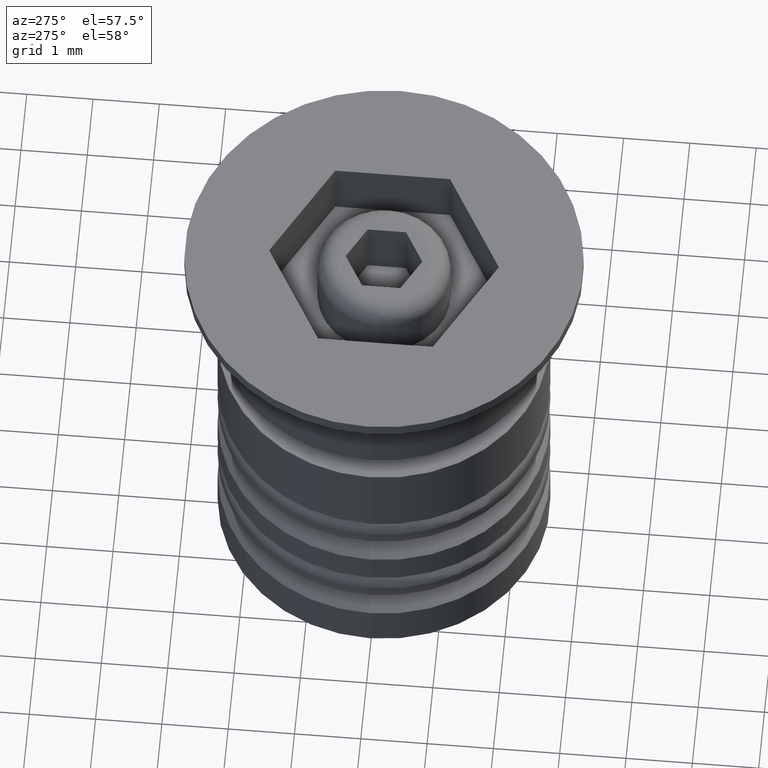
[diagram: clean part render]
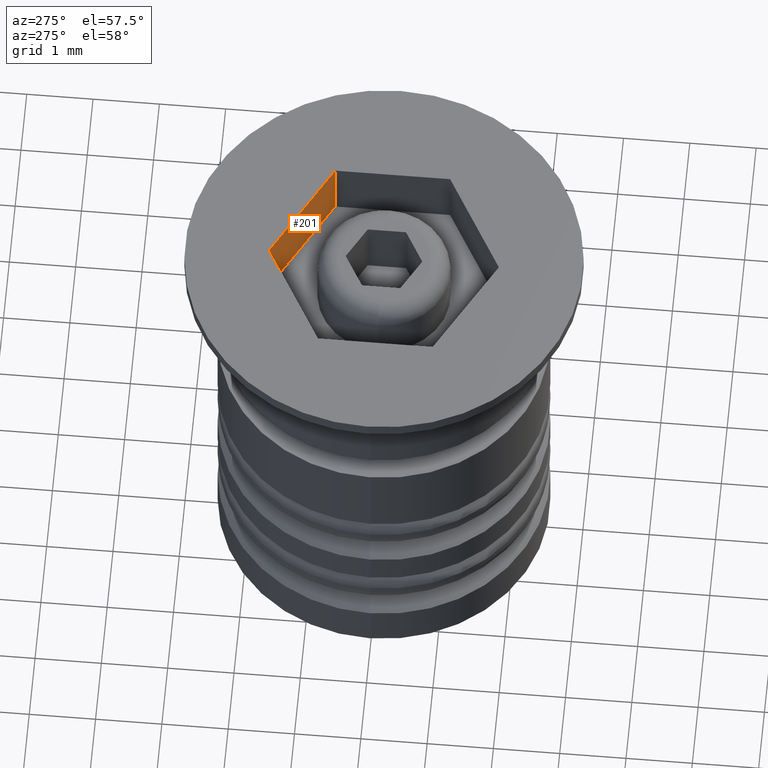
[diagram: same view with one face highlighted and labeled with its STEP entity id]
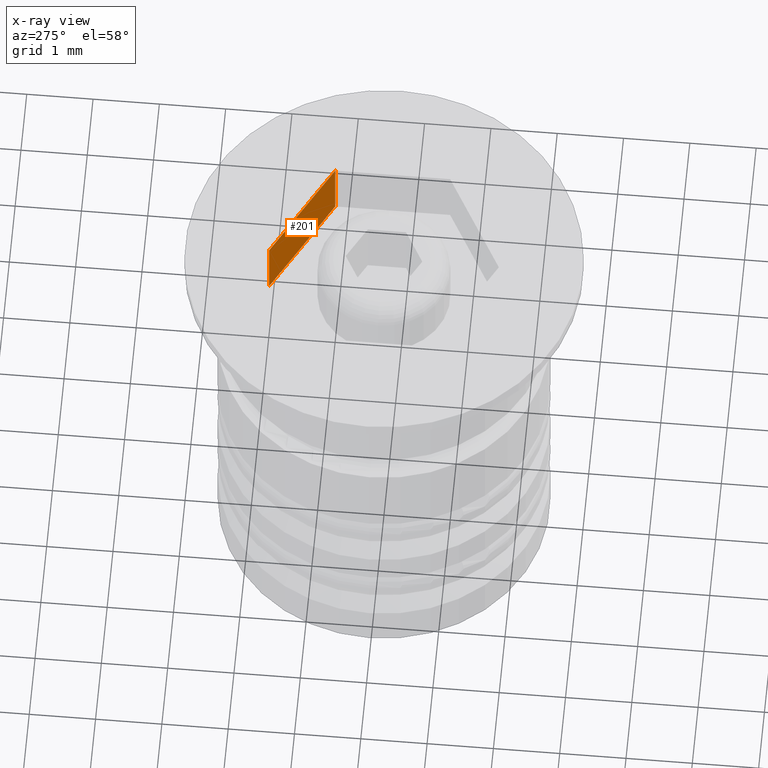
[diagram: x-ray of the same camera — body ghosted, the highlighted face saturated]
A machine part, auxiliary view. The second image highlights one B-rep face of the part: STEP entity #201.
The next image is the same camera in x-ray: the body ghosted, the highlighted face saturated — about 0% of this face is hidden behind the body in this view.
In plain terms, the highlighted planar face has unit normal (0.5, 0.866, 0).
Its self-contained STEP definition (entity closure, byte-faithful):
#34 = CARTESIAN_POINT ( 'NONE',  ( 1.500000000000000444, 0.8660254037844385966, -1.000000000000000000 ) ) ;
#47 = VECTOR ( 'NONE', #651, 1000.000000000000000 ) ;
#49 = VERTEX_POINT ( 'NONE', #34 ) ;
#78 = ORIENTED_EDGE ( 'NONE', *, *, #1298, .F. ) ;
#98 = DIRECTION ( 'NONE',  ( -0.8660254037844387076, 0.4999999999999999445, 0.000000000000000000 ) ) ;
#106 = VERTEX_POINT ( 'NONE', #1721 ) ;
#156 = VERTEX_POINT ( 'NONE', #1589 ) ;
#201 = ADVANCED_FACE ( 'NONE', ( #1350 ), #1784, .F. ) ;
#227 = CARTESIAN_POINT ( 'NONE',  ( 0.000000000000000000, 1.732050807568877415, -1.000000000000000000 ) ) ;
#260 = CARTESIAN_POINT ( 'NONE',  ( 0.000000000000000000, 1.732050807568877415, -1.000000000000000000 ) ) ;
#278 = DIRECTION ( 'NONE',  ( -0.8660254037844385966, 0.4999999999999998890, 0.000000000000000000 ) ) ;
#302 = VECTOR ( 'NONE', #1379, 1000.000000000000227 ) ;
#420 = VECTOR ( 'NONE', #278, 1000.000000000000227 ) ;
#480 = AXIS2_PLACEMENT_3D ( 'NONE', #1793, #1054, #98 ) ;
#610 = EDGE_CURVE ( 'NONE', #49, #106, #1491, .T. ) ;
#651 = DIRECTION ( 'NONE',  ( -0.000000000000000000, -0.000000000000000000, 1.000000000000000000 ) ) ;
#687 = ORIENTED_EDGE ( 'NONE', *, *, #1333, .F. ) ;
#865 = EDGE_LOOP ( 'NONE', ( #1317, #687, #78, #1550 ) ) ;
#892 = LINE ( 'NONE', #1318, #420 ) ;
#1054 = DIRECTION ( 'NONE',  ( 0.4999999999999999445, 0.8660254037844387076, 0.000000000000000000 ) ) ;
#1210 = EDGE_CURVE ( 'NONE', #106, #156, #892, .T. ) ;
#1298 = EDGE_CURVE ( 'NONE', #49, #1327, #1351, .T. ) ;
#1317 = ORIENTED_EDGE ( 'NONE', *, *, #1210, .T. ) ;
#1318 = CARTESIAN_POINT ( 'NONE',  ( 1.500000000000000444, 0.8660254037844385966, 0.000000000000000000 ) ) ;
#1327 = VERTEX_POINT ( 'NONE', #227 ) ;
#1333 = EDGE_CURVE ( 'NONE', #1327, #156, #1371, .T. ) ;
#1350 = FACE_OUTER_BOUND ( 'NONE', #865, .T. ) ;
#1351 = LINE ( 'NONE', #1789, #302 ) ;
#1371 = LINE ( 'NONE', #260, #1565 ) ;
#1379 = DIRECTION ( 'NONE',  ( -0.8660254037844385966, 0.4999999999999998890, 0.000000000000000000 ) ) ;
#1491 = LINE ( 'NONE', #1605, #47 ) ;
#1550 = ORIENTED_EDGE ( 'NONE', *, *, #610, .T. ) ;
#1565 = VECTOR ( 'NONE', #1648, 1000.000000000000000 ) ;
#1589 = CARTESIAN_POINT ( 'NONE',  ( 1.084202172485504434E-16, 1.732050807568877637, 0.000000000000000000 ) ) ;
#1605 = CARTESIAN_POINT ( 'NONE',  ( 1.500000000000000444, 0.8660254037844385966, -1.000000000000000000 ) ) ;
#1648 = DIRECTION ( 'NONE',  ( -0.000000000000000000, -0.000000000000000000, 1.000000000000000000 ) ) ;
#1721 = CARTESIAN_POINT ( 'NONE',  ( 1.500000000000000444, 0.8660254037844385966, 0.000000000000000000 ) ) ;
#1784 = PLANE ( 'NONE',  #480 ) ;
#1789 = CARTESIAN_POINT ( 'NONE',  ( 1.500000000000000444, 0.8660254037844385966, -1.000000000000000000 ) ) ;
#1793 = CARTESIAN_POINT ( 'NONE',  ( 1.500000000000000444, 0.8660254037844385966, -1.000000000000000000 ) ) ;